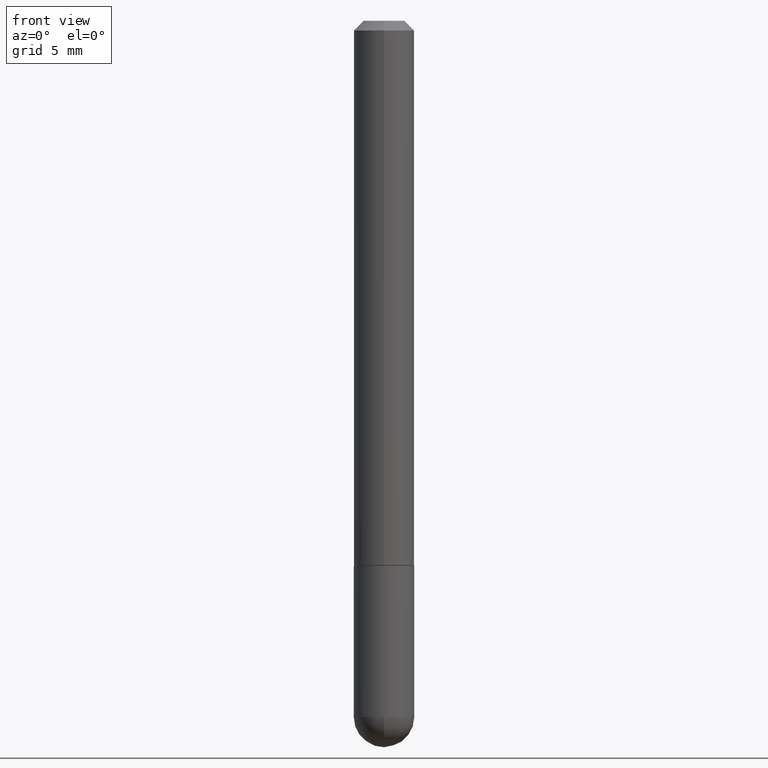
[diagram: clean part render]
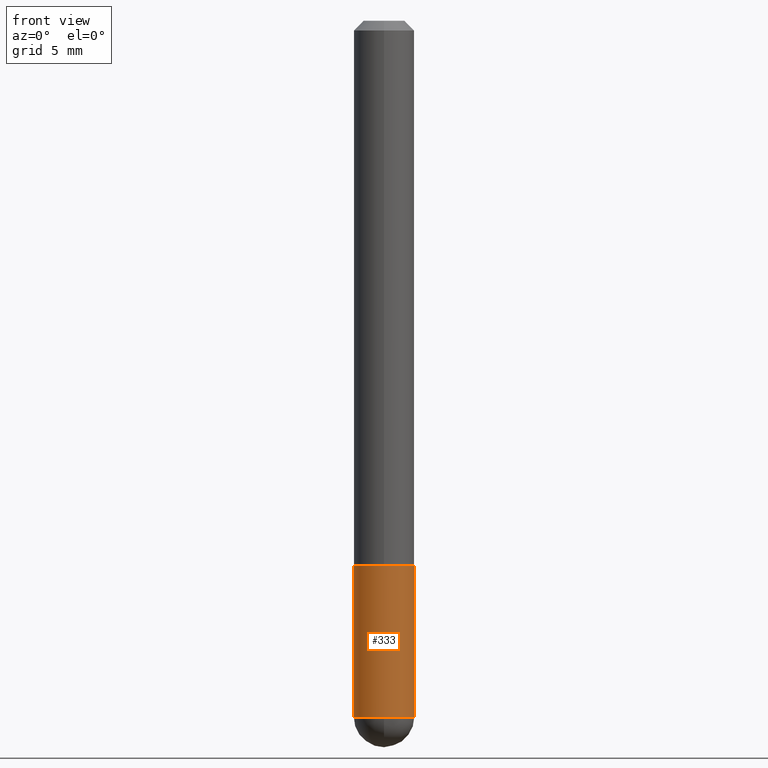
[diagram: same view with one face highlighted and labeled with its STEP entity id]
A machine part, front view. The second image highlights one B-rep face of the part: STEP entity #333.
In plain terms, the highlighted cylindrical surface (edge-blend (fillet) strip) has radius 1.5875 mm, axis along (-0, 0, 1).
Its self-contained STEP definition (entity closure, byte-faithful):
#10 = EDGE_LOOP ( 'NONE', ( #386, #329, #76, #314, #305 ) ) ;
#11 = VECTOR ( 'NONE', #310, 39.37007874015748143 ) ;
#20 = VECTOR ( 'NONE', #349, 39.37007874015748143 ) ;
#21 = CARTESIAN_POINT ( 'NONE',  ( -0.06249999999999995143, -4.029371255542718167E-15, -1.437500000000000222 ) ) ;
#40 = DIRECTION ( 'NONE',  ( 1.000000000000000000, -6.982962677686268288E-15, 0.000000000000000000 ) ) ;
#47 = AXIS2_PLACEMENT_3D ( 'NONE', #356, #202, #40 ) ;
#56 = AXIS2_PLACEMENT_3D ( 'NONE', #243, #365, #79 ) ;
#76 = ORIENTED_EDGE ( 'NONE', *, *, #136, .T. ) ;
#79 = DIRECTION ( 'NONE',  ( 1.000000000000000000, -6.982962677686269077E-15, 0.000000000000000000 ) ) ;
#81 = DIRECTION ( 'NONE',  ( -2.445468806185136597E-29, 3.491481338843145583E-15, 1.000000000000000000 ) ) ;
#86 = CARTESIAN_POINT ( 'NONE',  ( 0.06249999999999997918, -4.364351673553915708E-16, 3.047610484872459170E-30 ) ) ;
#96 = CARTESIAN_POINT ( 'NONE',  ( -0.06249999999999997918, 4.440892098500624683E-16, -3.074334431409315413E-30 ) ) ;
#103 = VERTEX_POINT ( 'NONE', #205 ) ;
#108 = DIRECTION ( 'NONE',  ( 1.000000000000000000, -6.982962677686268288E-15, 0.000000000000000000 ) ) ;
#136 = EDGE_CURVE ( 'NONE', #103, #394, #155, .T. ) ;
#142 = AXIS2_PLACEMENT_3D ( 'NONE', #313, #217, #252 ) ;
#155 = CIRCLE ( 'NONE', #47, 0.06249999999999995143 ) ;
#156 = LINE ( 'NONE', #96, #20 ) ;
#158 = CYLINDRICAL_SURFACE ( 'NONE', #142, 0.06249999999999997918 ) ;
#160 = CARTESIAN_POINT ( 'NONE',  ( 0.06249999999999995143, -4.909895632748172453E-15, -1.437500000000000222 ) ) ;
#202 = DIRECTION ( 'NONE',  ( -2.445468806185136597E-29, 3.491481338843145583E-15, 1.000000000000000000 ) ) ;
#203 = CIRCLE ( 'NONE', #228, 0.06249999999999995143 ) ;
#205 = CARTESIAN_POINT ( 'NONE',  ( -4.440892098500294840E-16, -0.06250000000000532907, -1.437500000000000000 ) ) ;
#217 = DIRECTION ( 'NONE',  ( -2.445468806185136597E-29, 3.491481338843145583E-15, 1.000000000000000000 ) ) ;
#228 = AXIS2_PLACEMENT_3D ( 'NONE', #233, #81, #108 ) ;
#233 = CARTESIAN_POINT ( 'NONE',  ( 3.515361408891134418E-29, -5.019004424587023131E-15, -1.437500000000000222 ) ) ;
#243 = CARTESIAN_POINT ( 'NONE',  ( 2.751152406958278111E-29, -3.927916506198538435E-15, -1.124999999999999778 ) ) ;
#247 = VERTEX_POINT ( 'NONE', #382 ) ;
#248 = EDGE_CURVE ( 'NONE', #318, #247, #406, .T. ) ;
#252 = DIRECTION ( 'NONE',  ( 1.000000000000000000, -6.982962677686267499E-15, 4.876176775795936353E-29 ) ) ;
#266 = EDGE_CURVE ( 'NONE', #357, #103, #203, .T. ) ;
#305 = ORIENTED_EDGE ( 'NONE', *, *, #248, .F. ) ;
#310 = DIRECTION ( 'NONE',  ( -2.445468806185136877E-29, 3.491481338843145188E-15, 1.000000000000000000 ) ) ;
#313 = CARTESIAN_POINT ( 'NONE',  ( 0.000000000000000000, 0.000000000000000000, 0.000000000000000000 ) ) ;
#314 = ORIENTED_EDGE ( 'NONE', *, *, #354, .T. ) ;
#318 = VERTEX_POINT ( 'NONE', #373 ) ;
#329 = ORIENTED_EDGE ( 'NONE', *, *, #266, .T. ) ;
#333 = ADVANCED_FACE ( 'NONE', ( #337 ), #158, .T. ) ;
#337 = FACE_OUTER_BOUND ( 'NONE', #10, .T. ) ;
#349 = DIRECTION ( 'NONE',  ( -2.445468806185136877E-29, 3.491481338843145188E-15, 1.000000000000000000 ) ) ;
#354 = EDGE_CURVE ( 'NONE', #394, #247, #371, .T. ) ;
#356 = CARTESIAN_POINT ( 'NONE',  ( 3.515361408891134418E-29, -5.019004424587023131E-15, -1.437500000000000222 ) ) ;
#357 = VERTEX_POINT ( 'NONE', #21 ) ;
#364 = EDGE_CURVE ( 'NONE', #357, #318, #156, .T. ) ;
#365 = DIRECTION ( 'NONE',  ( -2.445468806185136597E-29, 3.491481338843145583E-15, 1.000000000000000000 ) ) ;
#371 = LINE ( 'NONE', #86, #11 ) ;
#373 = CARTESIAN_POINT ( 'NONE',  ( -0.06250000000000001388, -4.029371255542718167E-15, -1.124999999999999778 ) ) ;
#382 = CARTESIAN_POINT ( 'NONE',  ( 0.06250000000000001388, -4.364351673553930105E-15, -1.124999999999999778 ) ) ;
#386 = ORIENTED_EDGE ( 'NONE', *, *, #364, .F. ) ;
#394 = VERTEX_POINT ( 'NONE', #160 ) ;
#406 = CIRCLE ( 'NONE', #56, 0.06250000000000001388 ) ;